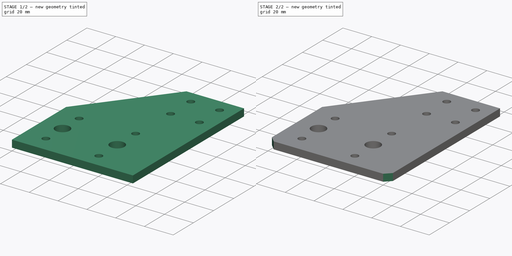
[diagram: build sequence overview — one tinted view per stage of 2, left to right]
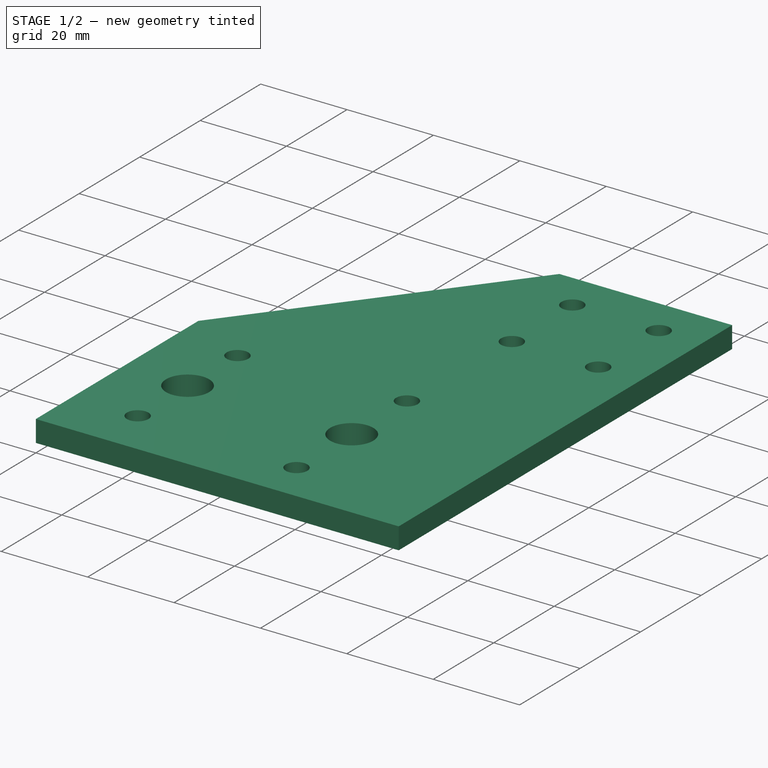
[diagram: stage 1 of 2 — iso view after this stage's code; geometry added in this stage tinted green]
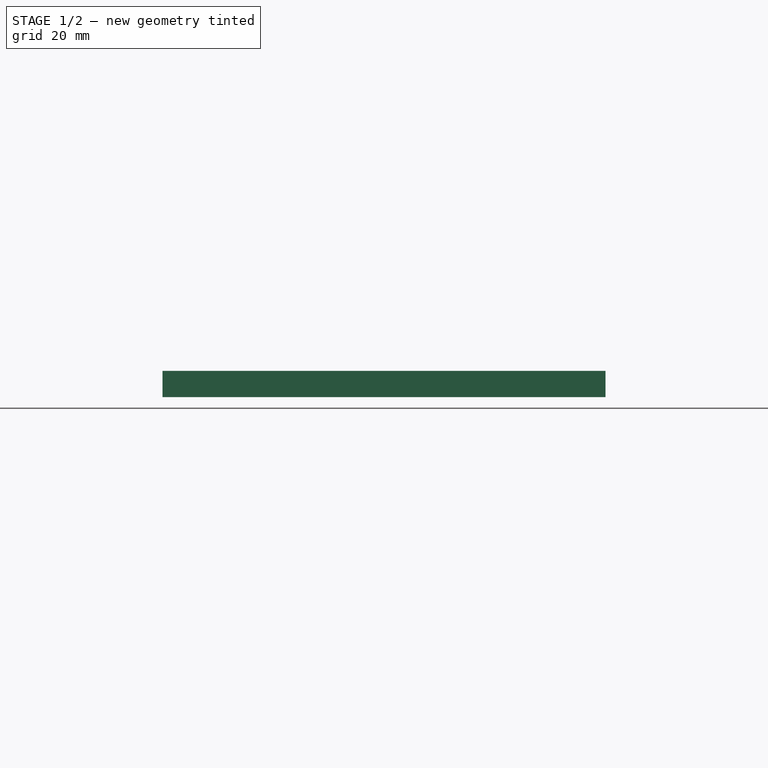
[diagram: stage 1 of 2 — front view after this stage's code; geometry added in this stage tinted green]
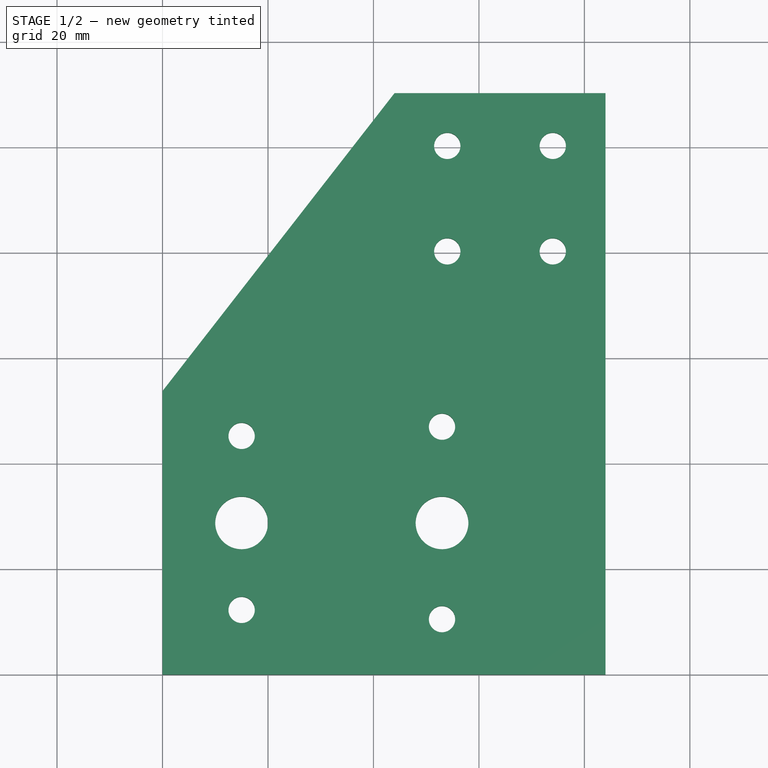
[diagram: stage 1 of 2 — top view after this stage's code; geometry added in this stage tinted green]
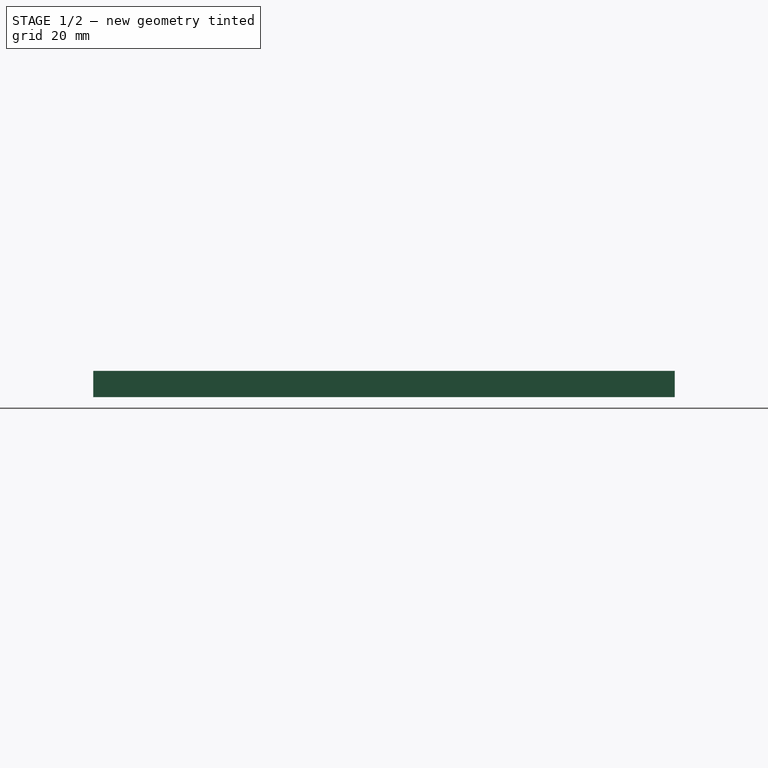
[diagram: stage 1 of 2 — right view after this stage's code; geometry added in this stage tinted green]
FCSTD DOCUMENT  (FreeCAD 0.18R14555 (Git shallow))
Label: top-bracket
License: All rights reserved
LicenseURL: http://en.wikipedia.org/wiki/All_rights_reserved
objects: Sketcher::SketchObject×1, PartDesign::Pad×1, PartDesign::Chamfer×1, PartDesign::Body×1
note: 5 computed .brp shape members not serialized (recipe doc carries the construction recipe); baked Part::Feature solids carry a one-line shape summary decoded from their .brp

FEATURE [Sketcher::SketchObject] Sketch
  MapMode = 5
  Support = -> [XY_Plane]
  sketch-geometry (48):
    g0: LineSegment [constr] StartX=5 StartY=8.75 StartZ=0 EndX=25 EndY=8.75 EndZ=0
    g1: LineSegment [constr] StartX=25 StartY=8.75 StartZ=0 EndX=25 EndY=48.75 EndZ=0
    g2: LineSegment [constr] StartX=25 StartY=48.75 StartZ=0 EndX=5 EndY=48.75 EndZ=0
    g3: LineSegment [constr] StartX=5 StartY=48.75 StartZ=0 EndX=5 EndY=8.75 EndZ=0
    g4: LineSegment [constr] StartX=39.5 StartY=5 StartZ=0 EndX=66.5 EndY=5 EndZ=0
    g5: LineSegment [constr] StartX=66.5 StartY=5 StartZ=0 EndX=66.5 EndY=52.5 EndZ=0
    g6: LineSegment [constr] StartX=66.5 StartY=52.5 StartZ=0 EndX=39.5 EndY=52.5 EndZ=0
    g7: LineSegment [constr] StartX=39.5 StartY=52.5 StartZ=0 EndX=39.5 EndY=5 EndZ=0
    g8: Circle CenterX=15 CenterY=45.25 CenterZ=0 NormalX=0 NormalY=0 NormalZ=1 AngleXU=0 Radius=2.5
    g9: Circle CenterX=15 CenterY=12.25 CenterZ=0 NormalX=0 NormalY=0 NormalZ=1 AngleXU=0 Radius=2.5
    g10: Circle CenterX=15 CenterY=28.75 CenterZ=0 NormalX=0 NormalY=0 NormalZ=1 AngleXU=0 Radius=5
    g11: Circle CenterX=53 CenterY=47 CenterZ=0 NormalX=0 NormalY=0 NormalZ=1 AngleXU=0 Radius=2.5
    g12: Circle CenterX=53 CenterY=28.75 CenterZ=0 NormalX=0 NormalY=0 NormalZ=1 AngleXU=0 Radius=5
    g13: Circle CenterX=53 CenterY=10.5 CenterZ=0 NormalX=0 NormalY=0 NormalZ=1 AngleXU=0 Radius=2.5
    g14: LineSegment [constr] StartX=15 StartY=45.25 StartZ=0 EndX=5 EndY=48.75 EndZ=0
    g15: LineSegment [constr] StartX=15 StartY=45.25 StartZ=0 EndX=25 EndY=48.75 EndZ=0
    g16: LineSegment [constr] StartX=15 StartY=45.25 StartZ=0 EndX=15 EndY=28.75 EndZ=0
    g17: LineSegment [constr] StartX=15 StartY=28.75 StartZ=0 EndX=15 EndY=12.25 EndZ=0
    g18: LineSegment [constr] StartX=15 StartY=12.25 StartZ=0 EndX=5 EndY=8.75 EndZ=0
    g19: LineSegment [constr] StartX=39.5 StartY=5 StartZ=0 EndX=53 EndY=10.5 EndZ=0
    g20: LineSegment [constr] StartX=53 StartY=10.5 StartZ=0 EndX=66.5 EndY=5 EndZ=0
    g21: LineSegment [constr] StartX=53 StartY=10.5 StartZ=0 EndX=53 EndY=28.75 EndZ=0
    g22: LineSegment [constr] StartX=53 StartY=28.75 StartZ=0 EndX=53 EndY=47 EndZ=0
    g23: LineSegment [constr] StartX=53 StartY=47 StartZ=0 EndX=39.5 EndY=52.5 EndZ=0
    g24: LineSegment [constr] StartX=15 StartY=28.75 StartZ=0 EndX=53 EndY=28.75 EndZ=0
    g25: LineSegment StartX=84 StartY=110.25 StartZ=0 EndX=44 EndY=110.25 EndZ=0
    g26: LineSegment StartX=44 StartY=110.25 StartZ=0 EndX=0 EndY=53.75 EndZ=0
    g27: LineSegment StartX=0 StartY=53.75 StartZ=0 EndX=0 EndY=0 EndZ=0
    g28: LineSegment StartX=0 StartY=0 StartZ=0 EndX=84 EndY=0 EndZ=0
    g29: LineSegment StartX=84 StartY=0 StartZ=0 EndX=84 EndY=110.25 EndZ=0
    g30: LineSegment [constr] StartX=74 StartY=100.25 StartZ=0 EndX=54 EndY=100.25 EndZ=0
    g31: LineSegment [constr] StartX=54 StartY=100.25 StartZ=0 EndX=54 EndY=80.25 EndZ=0
    g32: LineSegment [constr] StartX=54 StartY=80.25 StartZ=0 EndX=74 EndY=80.25 EndZ=0
    g33: LineSegment [constr] StartX=74 StartY=80.25 StartZ=0 EndX=74 EndY=100.25 EndZ=0
    g34: Circle CenterX=54 CenterY=80.25 CenterZ=0 NormalX=0 NormalY=0 NormalZ=1 AngleXU=0 Radius=2.5
    g35: Circle CenterX=74 CenterY=80.25 CenterZ=0 NormalX=0 NormalY=0 NormalZ=1 AngleXU=0 Radius=2.5
    g36: Circle CenterX=54 CenterY=100.25 CenterZ=0 NormalX=0 NormalY=0 NormalZ=1 AngleXU=0 Radius=2.5
    g37: Circle CenterX=74 CenterY=100.25 CenterZ=0 NormalX=0 NormalY=0 NormalZ=1 AngleXU=0 Radius=2.5
    g38: LineSegment [constr] StartX=44 StartY=110.25 StartZ=0 EndX=44 EndY=105.25 EndZ=0
    g39: LineSegment [constr] StartX=44 StartY=105.25 StartZ=0 EndX=79 EndY=105.25 EndZ=0
    g40: LineSegment [constr] StartX=79 StartY=105.25 StartZ=0 EndX=79 EndY=75.25 EndZ=0
    g41: LineSegment [constr] StartX=79 StartY=75.25 StartZ=0 EndX=44 EndY=75.25 EndZ=0
    g42: LineSegment [constr] StartX=44 StartY=75.25 StartZ=0 EndX=44 EndY=70.25 EndZ=0
    g43: LineSegment [constr] StartX=44 StartY=70.25 StartZ=0 EndX=84 EndY=70.25 EndZ=0
    g44: LineSegment [constr] StartX=84 StartY=70.25 StartZ=0 EndX=84 EndY=110.25 EndZ=0
    g45: LineSegment [constr] StartX=84 StartY=110.25 StartZ=0 EndX=44 EndY=110.25 EndZ=0
    g46: LineSegment [constr] StartX=74 StartY=80.25 StartZ=0 EndX=79 EndY=75.25 EndZ=0
    g47: LineSegment [constr] StartX=74 StartY=100.25 StartZ=0 EndX=79 EndY=105.25 EndZ=0
  constraints (125):
    c: Coincident(g0,g1)
    c: Coincident(g1,g2)
    c: Coincident(g2,g3)
    c: Coincident(g3,g0)
    c: Horizontal(g0)
    c: Horizontal(g2)
    c: Vertical(g1)
    c: Vertical(g3)
    c: Coincident(g4,g5)
    c: Coincident(g5,g6)
    c: Coincident(g6,g7)
    c: Coincident(g7,g4)
    c: Horizontal(g4)
    c: Horizontal(g6)
    c: Vertical(g5)
    c: Vertical(g7)
    c: Equal(g8,g9)
    c: Equal(g13,g11)
    c: Coincident(g14,g8)
    c: Coincident(g14,g2)
    c: Coincident(g15,g8)
    c: Coincident(g15,g1)
    c: Coincident(g16,g8)
    c: Coincident(g16,g10)
    c: Vertical(g16)
    c: Coincident(g17,g10)
    c: Coincident(g17,g9)
    c: Vertical(g17)
    c: Coincident(g18,g9)
    c: Coincident(g18,g0)
    c: Equal(g18,g14)
    c: Equal(g14,g15)
    c: Equal(g17,g16)
    c: Radius(g8) = 2.5
    c: Radius(g10) = 5
    c: Coincident(g19,g4)
    c: Coincident(g19,g13)
    c: Coincident(g20,g13)
    c: Coincident(g20,g4)
    c: Coincident(g21,g13)
    c: Coincident(g21,g12)
    c: Vertical(g21)
    c: Coincident(g22,g12)
    c: Coincident(g22,g11)
    c: Coincident(g23,g11)
    c: Coincident(g23,g6)
    c: Equal(g20,g19)
    c: Equal(g19,g23)
    c: Vertical(g22)
    c: Equal(g21,g22)
    c: Radius(g11) = 2.5
    c: Radius(g12) = 5
    c: Coincident(g24,g10)
    c: Coincident(g24,g12)
    c: Horizontal(g24)
    c: DistanceX(g24,g24) = 38
    c: DistanceX(g2,g2) = 20
    c: DistanceY(g3,g3) = 40
    c: DistanceY(g9,g8) = 33
    c: DistanceX(g6,g6) = 27
    c: DistanceY(g13,g11) = 36.5
    c: DistanceY(g4,g5) = 47.5
    c: Horizontal(g25)
    c: Coincident(g25,g26)
    c: Coincident(g26,g27)
    c: Vertical(g27)
    c: Coincident(g27,g28)
    c: Horizontal(g28)
    c: Coincident(g28,g29)
    c: Coincident(g29,g25)
    c: Vertical(g29)
    c: DistanceY(g12,g25) = 81.5
    c: DistanceX(g12,g28) = 31
    c: DistanceX(g26,g2) = 5
    c: DistanceX(g25,g25) = 40
    c: DistanceY(g2,g26) = 5
    c: DistanceY(g28,g4) = 5
    c: Coincident(g27,g-1)
    c: Coincident(g30,g31)
    c: Coincident(g31,g32)
    c: Coincident(g32,g33)
    c: Coincident(g33,g30)
    c: Horizontal(g30)
    c: Horizontal(g32)
    c: Vertical(g31)
    c: Vertical(g33)
    c: Equal(g31,g30)
    c: DistanceX(g32,g32) = 20
    c: Coincident(g34,g31)
    c: Coincident(g35,g32)
    c: Coincident(g36,g30)
    c: Coincident(g37,g30)
    c: Equal(g37,g36)
    c: Equal(g36,g34)
    c: Equal(g34,g35)
    c: Radius(g36) = 2.5
    c: Vertical(g38)
    c: Coincident(g38,g39)
    c: Horizontal(g39)
    c: Coincident(g39,g40)
    c: Vertical(g40)
    c: Coincident(g40,g41)
    c: Horizontal(g41)
    c: Coincident(g41,g42)
    c: Vertical(g42)
    c: Coincident(g42,g43)
    c: Horizontal(g43)
    c: Coincident(g43,g44)
    c: Vertical(g44)
    c: Coincident(g44,g45)
    c: Coincident(g45,g38)
    c: Horizontal(g45)
    c: Equal(g45,g44)
    c: Equal(g44,g43)
    c: Equal(g42,g38)
    c: DistanceY(g44,g44) = 40
    c: Coincident(g44,g25)
    c: DistanceX(g39,g25) = 5
    c: DistanceY(g38,g38) = 5
    c: Coincident(g46,g35)
    c: Coincident(g46,g40)
    c: Coincident(g47,g37)
    c: Coincident(g47,g39)
    c: Equal(g47,g46)
    c: DistanceX(g37,g39) = 5
FEATURE [PartDesign::Pad] Pad
  Length = 5
  Length2 = 100
  Profile = -> Sketch
  Type = 0
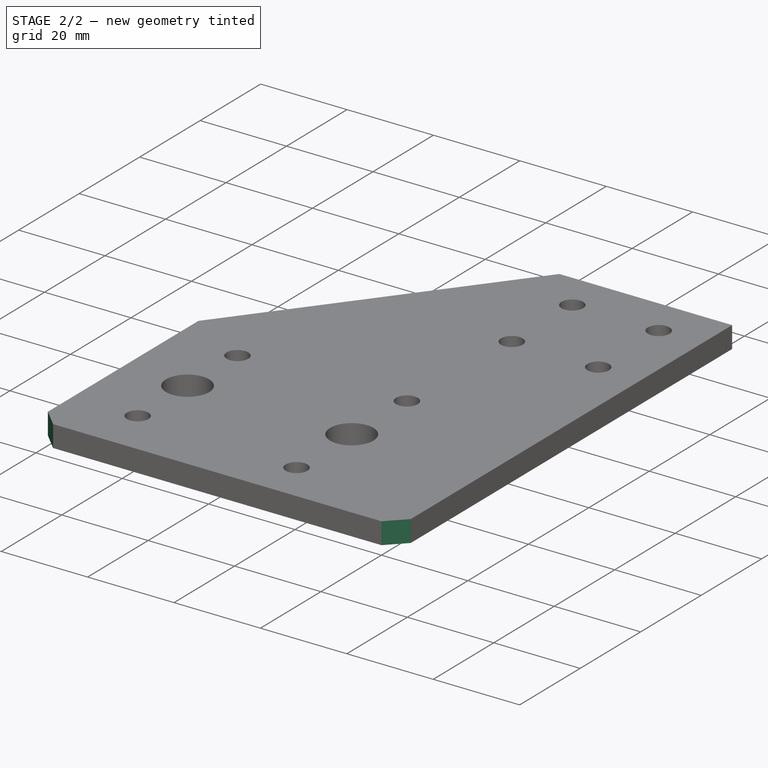
[diagram: stage 2 of 2 — iso view after this stage's code; geometry added in this stage tinted green]
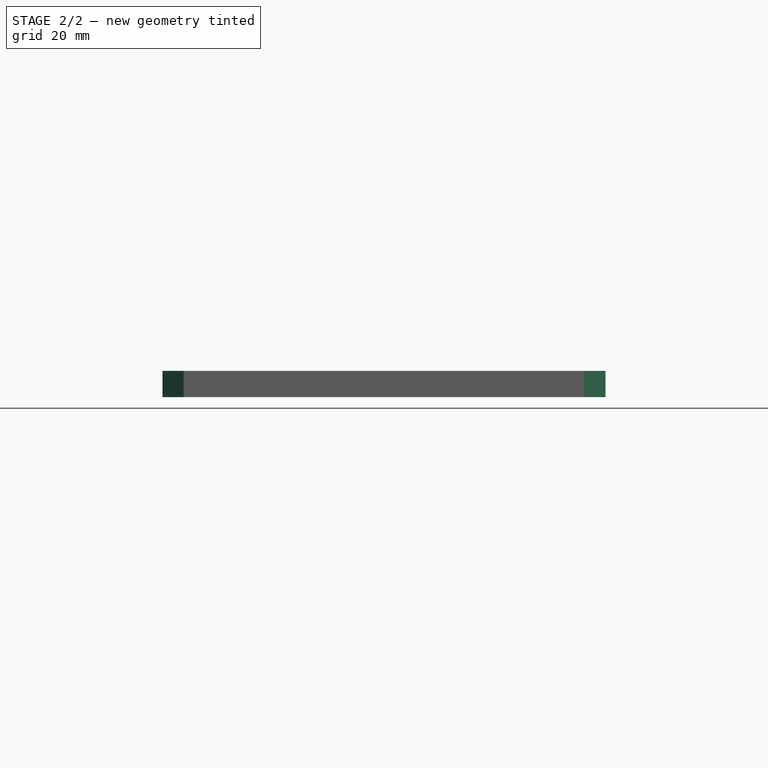
[diagram: stage 2 of 2 — front view after this stage's code; geometry added in this stage tinted green]
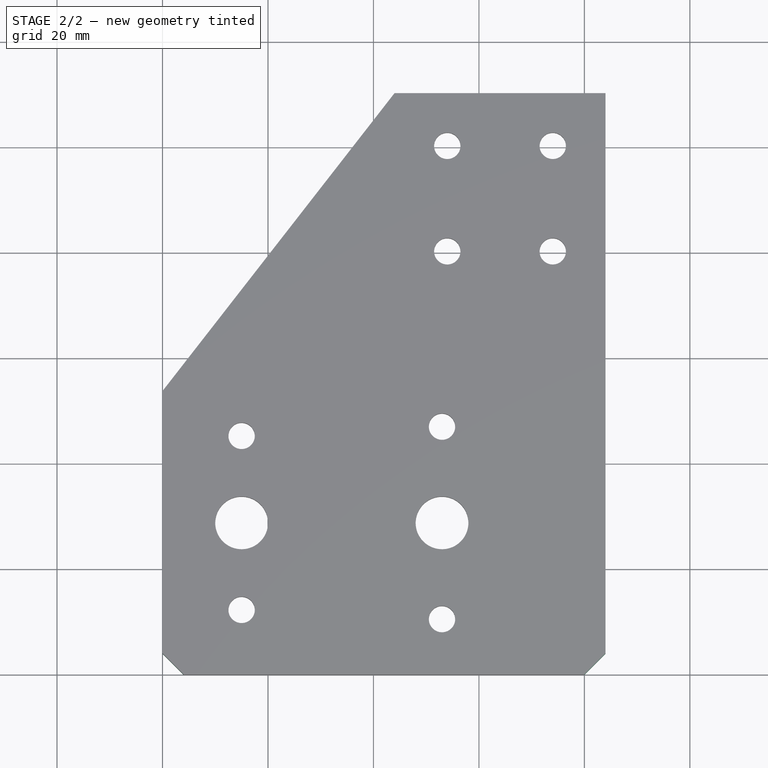
[diagram: stage 2 of 2 — top view after this stage's code; geometry added in this stage tinted green]
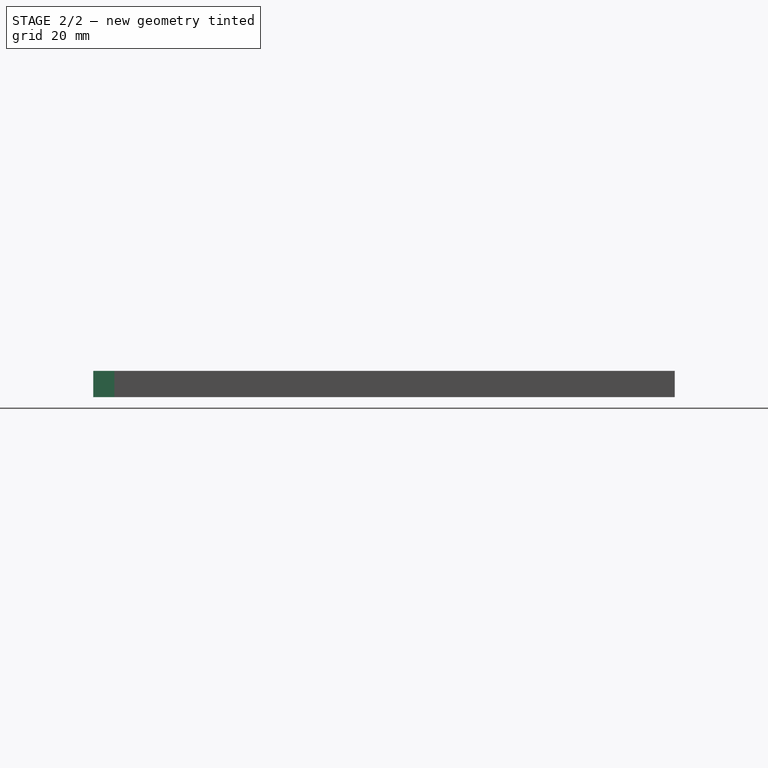
[diagram: stage 2 of 2 — right view after this stage's code; geometry added in this stage tinted green]
FEATURE [PartDesign::Chamfer] Chamfer
  Base = -> Pad [Edge8,Edge11]
  BaseFeature = -> Pad
  Size = 4
FEATURE [PartDesign::Body] Body
  Group = -> [Sketch,Pad,Chamfer]
  Origin = -> Origin
  Tip = -> Chamfer
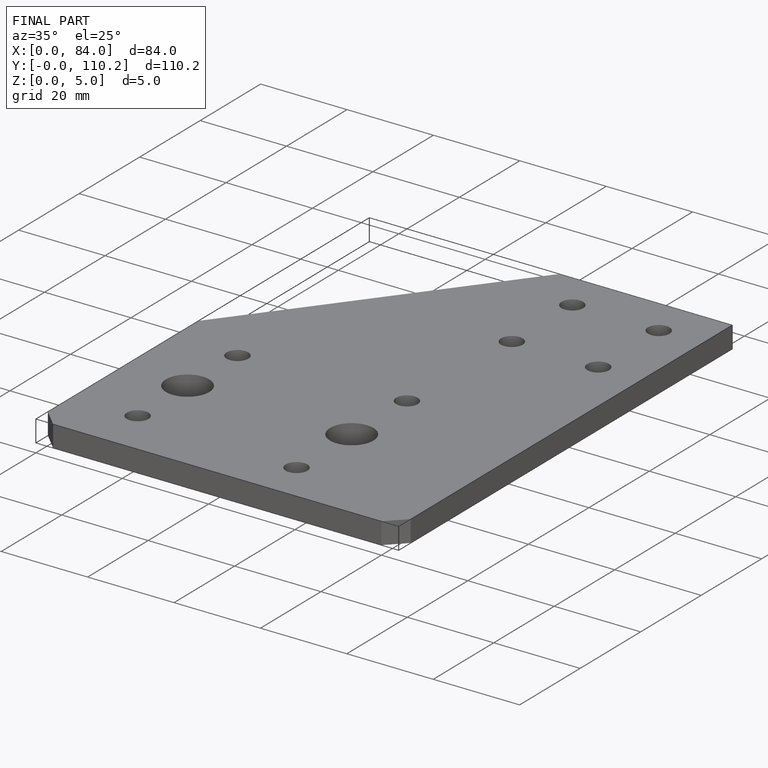
[diagram: finished part — iso view with bounding-box wireframe]
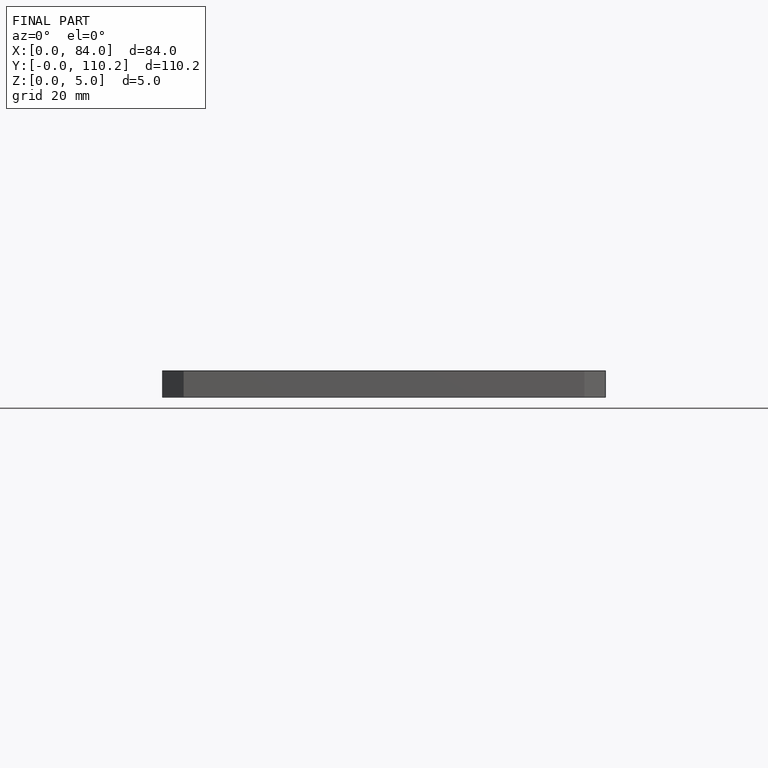
[diagram: finished part — front view with bounding-box wireframe]
